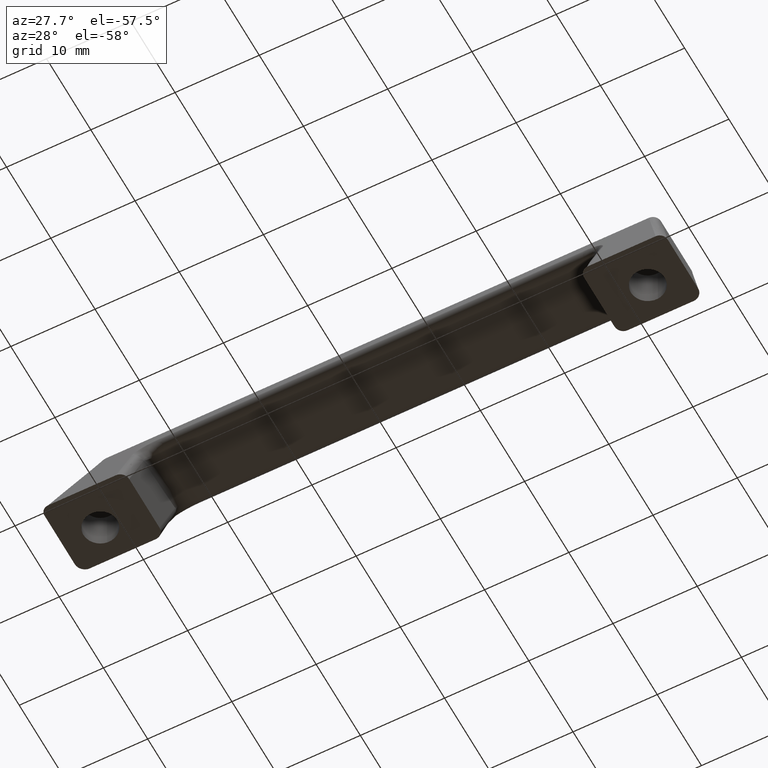
[diagram: clean part render]
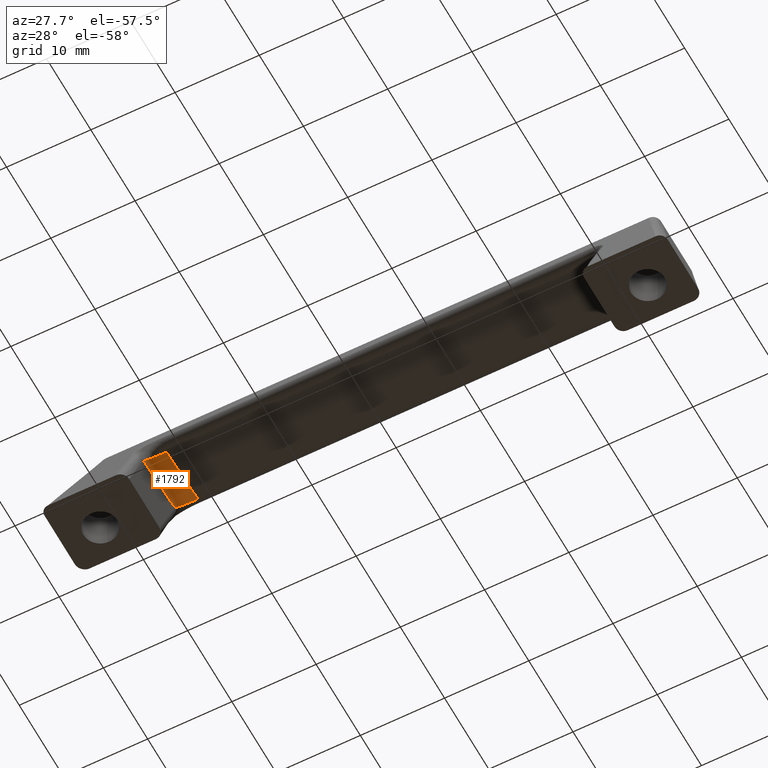
[diagram: same view with one face highlighted and labeled with its STEP entity id]
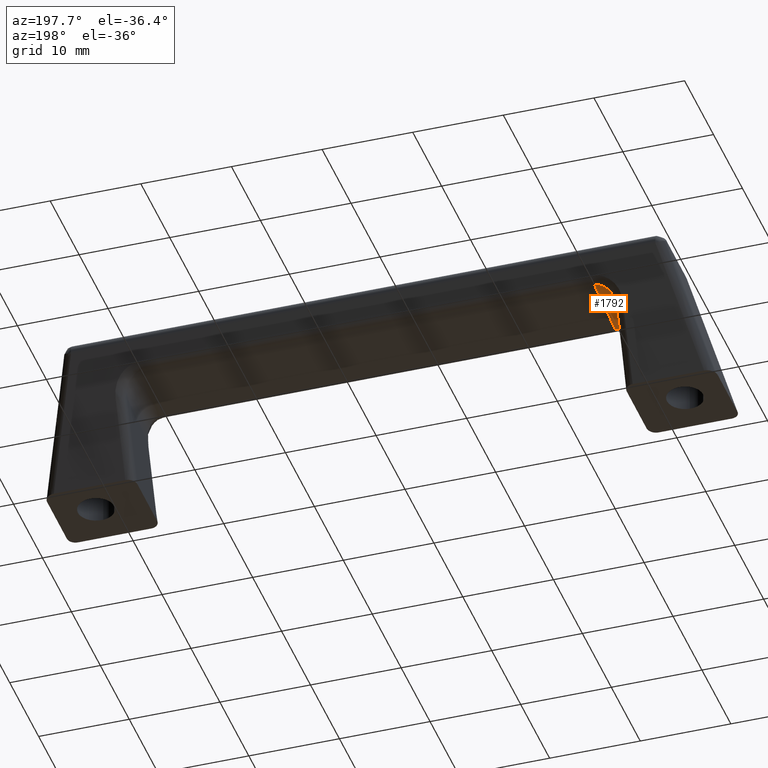
[diagram: same view with one face highlighted and labeled with its STEP entity id]
A machine part, auxiliary view. The second image highlights one B-rep face of the part: STEP entity #1792.
A second angle (auxiliary view) of the same face is appended — the face is thin or edge-on in the first view.
In plain terms, the highlighted face is a freeform B-spline surface patch.
Its self-contained STEP definition (entity closure, byte-faithful):
#851=CARTESIAN_POINT('',(-25.0,5.650503091472801,10.175618892956820));
#852=VERTEX_POINT('',#851);
#922=CARTESIAN_POINT('',(-27.0,4.284399233375640,8.018999520875260));
#923=VERTEX_POINT('',#922);
#937=CARTESIAN_POINT('',(-25.0,5.650503091472801,10.175618892956820));
#938=CARTESIAN_POINT('',(-25.828427023681595,5.650503131911025,10.175618956795203));
#939=CARTESIAN_POINT('',(-26.414213511840799,5.250380569757431,9.543959757801872));
#940=CARTESIAN_POINT('',(-27.000000000000004,4.850258007603838,8.912300558808544));
#941=CARTESIAN_POINT('',(-27.0,4.284399233375640,8.018999520875260));
#949=(BOUNDED_CURVE()B_SPLINE_CURVE(2,(#937,#938,#939,#940,#941),.UNSPECIFIED.,.F.,.U.)B_SPLINE_CURVE_WITH_KNOTS((3,2,3),(0.0,0.500000000000000,1.0),.UNSPECIFIED.)CURVE()GEOMETRIC_REPRESENTATION_ITEM()RATIONAL_B_SPLINE_CURVE((1.0,0.923879525674318,1.0,0.923879525674318,1.0))REPRESENTATION_ITEM(''));
#950=EDGE_CURVE('',#852,#923,#949,.T.);
#1052=CARTESIAN_POINT('',(-27.0,11.434461308442661,8.779661086079102));
#1053=VERTEX_POINT('',#1052);
#1155=CARTESIAN_POINT('',(-25.0,12.800511884797841,10.936274789766060));
#1156=VERTEX_POINT('',#1155);
#1170=CARTESIAN_POINT('',(-27.0,11.434461308442661,8.779661086079102));
#1171=CARTESIAN_POINT('',(-27.000000034915598,12.000297943345080,9.672959666673815));
#1172=CARTESIAN_POINT('',(-26.414213592175422,12.400404914071450,10.304617228219939));
#1173=CARTESIAN_POINT('',(-25.828427149435246,12.800511884797832,10.936274789766070));
#1174=CARTESIAN_POINT('',(-25.0,12.800511884797830,10.936274789766070));
#1182=(BOUNDED_CURVE()B_SPLINE_CURVE(2,(#1170,#1171,#1172,#1173,#1174),.UNSPECIFIED.,.F.,.U.)B_SPLINE_CURVE_WITH_KNOTS((3,2,3),(0.0,0.500000000000000,1.0),.UNSPECIFIED.)CURVE()GEOMETRIC_REPRESENTATION_ITEM()RATIONAL_B_SPLINE_CURVE((1.0,0.923879528479062,1.0,0.923879528479062,1.0))REPRESENTATION_ITEM(''));
#1183=EDGE_CURVE('',#1053,#1156,#1182,.T.);
#1764=CARTESIAN_POINT('',(-26.999314649951110,13.235819242796660,8.918649777634276));
#1765=CARTESIAN_POINT('',(-26.999314649951110,4.066290626080233,7.943146639823050));
#1766=CARTESIAN_POINT('',(-27.055457330529716,13.009008767163875,11.050621543047848));
#1767=CARTESIAN_POINT('',(-27.055457330529716,3.839480150447451,10.075118405236621));
#1768=CARTESIAN_POINT('',(-24.912761225269328,13.018905492519620,10.957594362669010));
#1769=CARTESIAN_POINT('',(-24.912761225269339,3.849376875803195,9.982091224857781));
#1777=(BOUNDED_SURFACE()B_SPLINE_SURFACE(1,2,((#1764,#1766,#1768),(#1765,#1767,#1769)),.UNSPECIFIED.,.F.,.F.,.U.)B_SPLINE_SURFACE_WITH_KNOTS((2,2),(3,3),(0.0,9.221272223758556),(0.0,3.478498999687463),.UNSPECIFIED.)GEOMETRIC_REPRESENTATION_ITEM()RATIONAL_B_SPLINE_SURFACE(((1.0,0.681998360062498,1.0),(1.0,0.681998360062498,1.0)))REPRESENTATION_ITEM('')SURFACE());
#1778=CARTESIAN_POINT('',(-27.0,11.434461308442661,8.779661086079102));
#1779=CARTESIAN_POINT('',(-27.0,4.284399233375640,8.018999520875260));
#1780=QUASI_UNIFORM_CURVE('',1,(#1778,#1779),.UNSPECIFIED.,.F.,.U.);
#1781=EDGE_CURVE('',#1053,#923,#1780,.T.);
#1782=ORIENTED_EDGE('',*,*,#1781,.F.);
#1783=ORIENTED_EDGE('',*,*,#1183,.T.);
#1784=CARTESIAN_POINT('',(-25.0,5.650503091472801,10.175618892956820));
#1785=CARTESIAN_POINT('',(-25.0,12.800511884797841,10.936274789766060));
#1786=QUASI_UNIFORM_CURVE('',1,(#1784,#1785),.UNSPECIFIED.,.F.,.U.);
#1787=EDGE_CURVE('',#852,#1156,#1786,.T.);
#1788=ORIENTED_EDGE('',*,*,#1787,.F.);
#1789=ORIENTED_EDGE('',*,*,#950,.T.);
#1790=EDGE_LOOP('',(#1782,#1783,#1788,#1789));
#1791=FACE_OUTER_BOUND('',#1790,.T.);
#1792=ADVANCED_FACE('',(#1791),#1777,.F.);